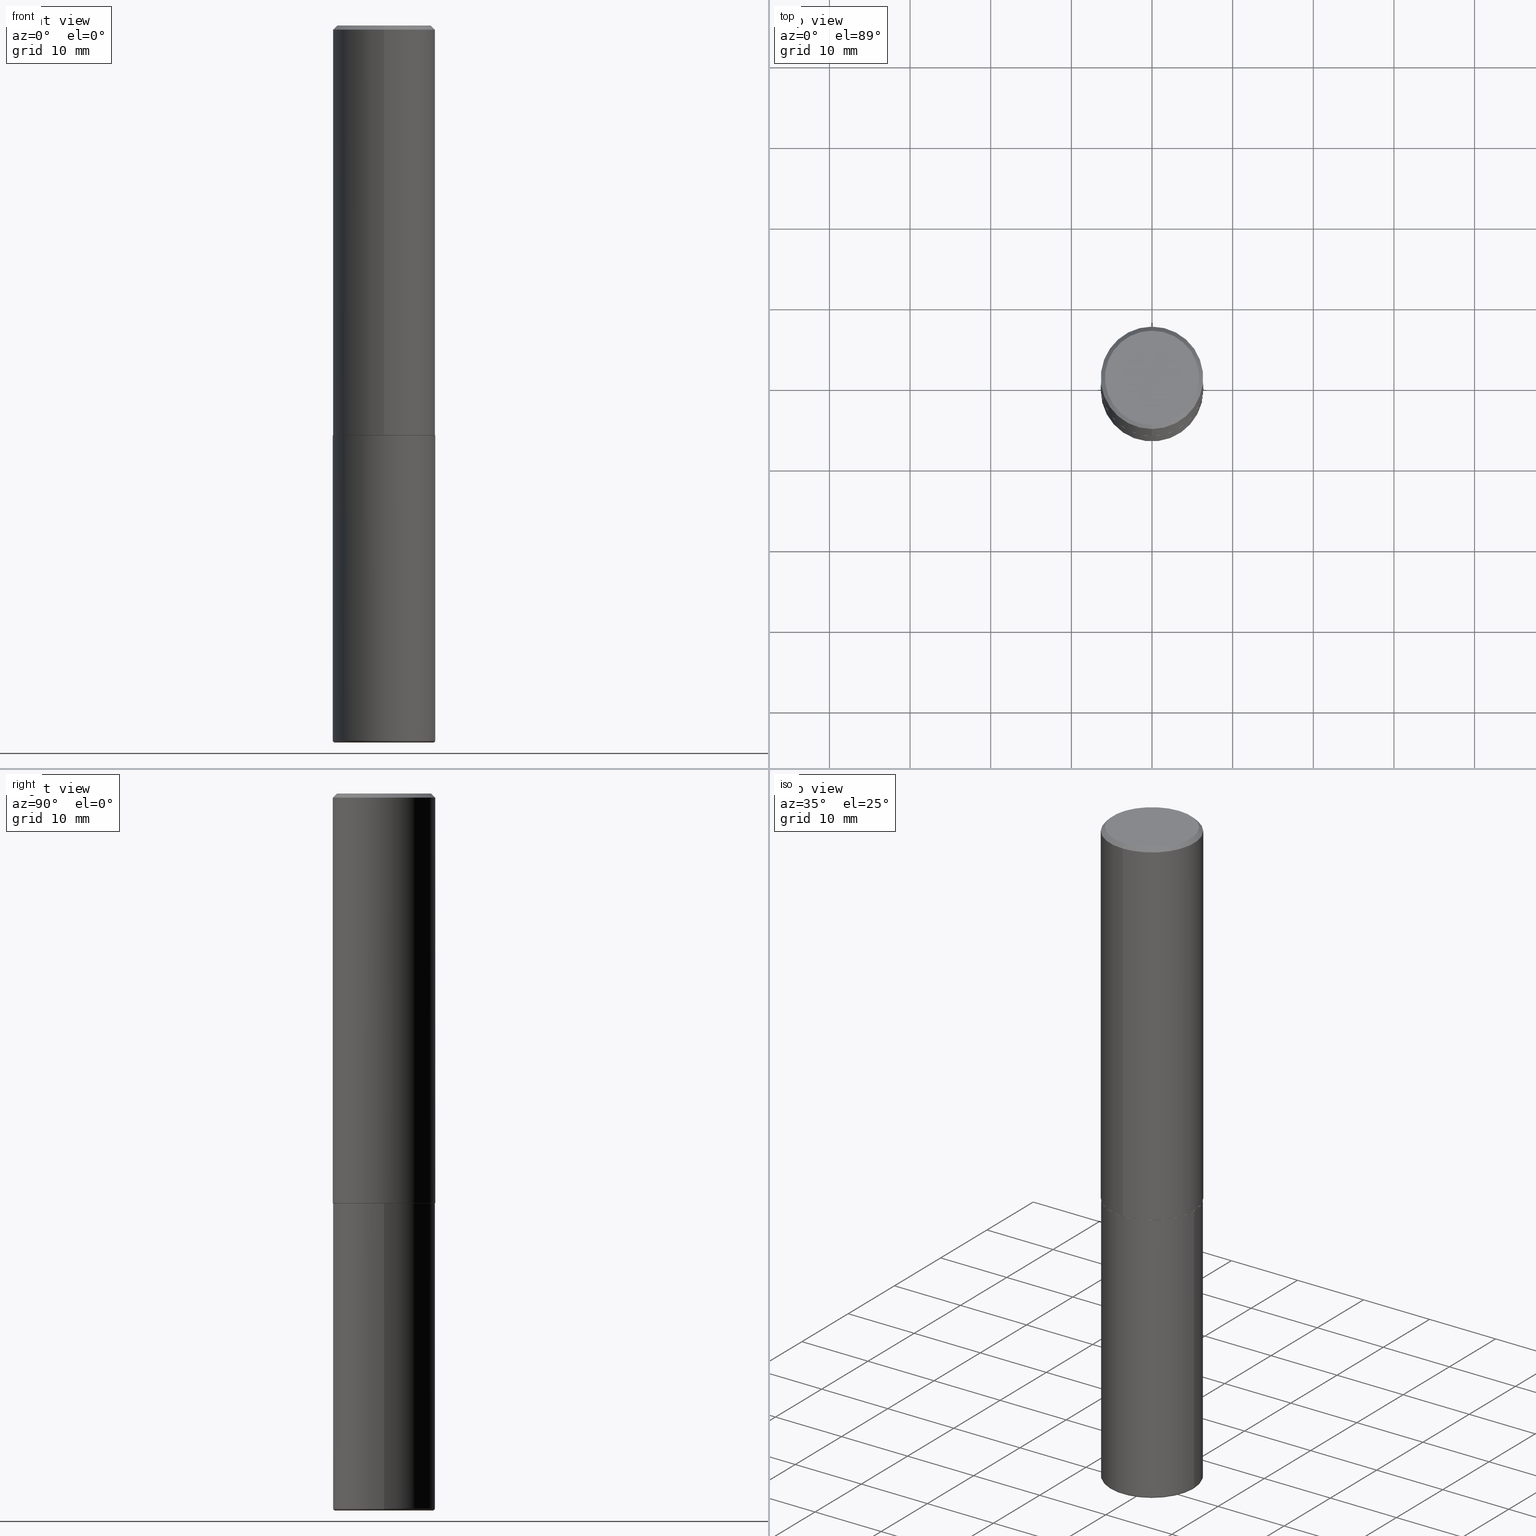
[diagram: canonical four-view strip — front | top / right | iso, engineering-drawing reading convention]
A machine part, canonical four-view strip (front | top / right | iso — engineering-drawing reading convention). The complete STEP part file that produces these views, byte-faithful:
ISO-10303-21;
HEADER;
FILE_DESCRIPTION (( 'STEP AP203' ),
    '1' );
FILE_NAME ('37516.STEP',
    '2024-03-02T03:02:19',
    ( '' ),
    ( '' ),
    'SwSTEP 2.0',
    'SolidWorks 2023',
    '' );
FILE_SCHEMA (( 'CONFIG_CONTROL_DESIGN' ));
ENDSEC;

DATA;
#1 = ORIENTED_EDGE ( 'NONE', *, *, #58, .T. ) ;
#2 = AXIS2_PLACEMENT_3D ( 'NONE', #164, #223, #317 ) ;
#3 = DIRECTION ( 'NONE',  ( -4.851104656540962697E-15, -0.7071067811865497932, -0.7071067811865451302 ) ) ;
#4 = AXIS2_PLACEMENT_3D ( 'NONE', #415, #411, #121 ) ;
#5 = EDGE_LOOP ( 'NONE', ( #131, #188, #32, #122 ) ) ;
#6 = LINE ( 'NONE', #312, #364 ) ;
#7 = DIRECTION ( 'NONE',  ( 2.445737183286911680E-29, -3.491097007558327602E-15, -1.000000000000000000 ) ) ;
#8 = DIRECTION ( 'NONE',  ( -1.000000000000000000, 6.982962677686265922E-15, -4.876176775795935793E-29 ) ) ;
#9 = VECTOR ( 'NONE', #395, 39.37007874015748143 ) ;
#10 = PERSON_AND_ORGANIZATION ( #309, #201 ) ;
#11 = DIRECTION ( 'NONE',  ( -6.982962677686265922E-15, -1.000000000000000000, 3.483106191921935554E-15 ) ) ;
#12 = DIRECTION ( 'NONE',  ( 1.000000000000000000, 0.000000000000000000, 0.000000000000000000 ) ) ;
#13 = DIRECTION ( 'NONE',  ( -6.982962677686265922E-15, -1.000000000000000000, 3.491097007558327602E-15 ) ) ;
#14 = ORIENTED_EDGE ( 'NONE', *, *, #224, .T. ) ;
#15 = CIRCLE ( 'NONE', #220, 0.2500000000000000000 ) ;
#16 = EDGE_CURVE ( 'NONE', #307, #358, #128, .T. ) ;
#17 = ORIENTED_EDGE ( 'NONE', *, *, #347, .F. ) ;
#18 = DIRECTION ( 'NONE',  ( 6.982962677686265922E-15, 1.000000000000000000, -3.483106191921935554E-15 ) ) ;
#19 = DESIGN_CONTEXT ( 'detailed design', #147, 'design' ) ;
#20 = CALENDAR_DATE ( 2024, 1, 3 ) ;
#21 = ADVANCED_FACE ( 'NONE', ( #41 ), #297, .F. ) ;
#22 = DIRECTION ( 'NONE',  ( -2.445737183286911680E-29, 3.491097007558327602E-15, 1.000000000000000000 ) ) ;
#23 = DIRECTION ( 'NONE',  ( -2.445737183286911680E-29, 3.491097007558327602E-15, 1.000000000000000000 ) ) ;
#24 = APPLICATION_PROTOCOL_DEFINITION ( 'international standard', 'config_control_design', 1994, #147 ) ;
#25 = CARTESIAN_POINT ( 'NONE',  ( 4.890937612370272633E-29, -6.982962677686290376E-15, -1.999999999999999778 ) ) ;
#26 = ADVANCED_FACE ( 'NONE', ( #143 ), #352, .T. ) ;
#27 = CLOSED_SHELL ( 'NONE', ( #402, #102, #95, #399, #310, #272 ) ) ;
#28 = SECURITY_CLASSIFICATION_LEVEL ( 'unclassified' ) ;
#29 = CC_DESIGN_APPROVAL ( #130, ( #186 ) ) ;
#30 = CARTESIAN_POINT ( 'NONE',  ( -1.738757706743831162E-15, -0.2490000000000069658, -1.999999999999998890 ) ) ;
#31 = DIRECTION ( 'NONE',  ( 4.937700262164546464E-15, 0.7071067811865447972, -0.7071067811865500152 ) ) ;
#32 = ORIENTED_EDGE ( 'NONE', *, *, #114, .T. ) ;
#33 = EDGE_CURVE ( 'NONE', #390, #249, #53, .T. ) ;
#34 = LINE ( 'NONE', #256, #313 ) ;
#35 = ORIENTED_EDGE ( 'NONE', *, *, #195, .F. ) ;
#36 = AXIS2_PLACEMENT_3D ( 'NONE', #262, #294, #11 ) ;
#37 = DIRECTION ( 'NONE',  ( 1.000000000000000000, -6.982962677686268288E-15, 0.000000000000000000 ) ) ;
#38 =( GEOMETRIC_REPRESENTATION_CONTEXT ( 3 ) GLOBAL_UNCERTAINTY_ASSIGNED_CONTEXT ( ( #362 ) ) GLOBAL_UNIT_ASSIGNED_CONTEXT ( ( #366, #261, #296 ) ) REPRESENTATION_CONTEXT ( 'NONE', 'WORKASPACE' ) );
#39 = EDGE_LOOP ( 'NONE', ( #354, #349, #134, #111 ) ) ;
#40 = LINE ( 'NONE', #392, #9 ) ;
#41 = FACE_OUTER_BOUND ( 'NONE', #413, .T. ) ;
#42 = CARTESIAN_POINT ( 'NONE',  ( -1.715124499442882299E-15, -0.2500000000000000555, -0.01999999999999918510 ) ) ;
#43 = ORIENTED_EDGE ( 'NONE', *, *, #323, .F. ) ;
#44 = DIRECTION ( 'NONE',  ( 0.000000000000000000, 0.000000000000000000, 1.000000000000000000 ) ) ;
#45 = AXIS2_PLACEMENT_3D ( 'NONE', #94, #226, #132 ) ;
#46 = VERTEX_POINT ( 'NONE', #343 ) ;
#47 = CC_DESIGN_PERSON_AND_ORGANIZATION_ASSIGNMENT ( #245, #305, ( #146 ) ) ;
#48 = ORIENTED_EDGE ( 'NONE', *, *, #417, .F. ) ;
#49 = EDGE_LOOP ( 'NONE', ( #241, #316, #289, #396 ) ) ;
#50 = CIRCLE ( 'NONE', #4, 0.2500000000000000000 ) ;
#51 = PERSON_AND_ORGANIZATION ( #309, #201 ) ;
#52 = DIRECTION ( 'NONE',  ( -6.982962677686265922E-15, -1.000000000000000000, 3.278217592397112312E-15 ) ) ;
#53 = CIRCLE ( 'NONE', #138, 0.2500000000000002776 ) ;
#54 = AXIS2_PLACEMENT_3D ( 'NONE', #192, #7, #18 ) ;
#55 = CC_DESIGN_PERSON_AND_ORGANIZATION_ASSIGNMENT ( #282, #337, ( #328 ) ) ;
#56 = CARTESIAN_POINT ( 'NONE',  ( 4.890937612370272633E-29, -6.982962677686290376E-15, -1.999999999999999778 ) ) ;
#57 = DIRECTION ( 'NONE',  ( -2.445468806185136597E-29, 3.491481338843145583E-15, 1.000000000000000000 ) ) ;
#58 = EDGE_CURVE ( 'NONE', #238, #401, #365, .T. ) ;
#59 = CALENDAR_DATE ( 2024, 1, 3 ) ;
#60 = FACE_OUTER_BOUND ( 'NONE', #106, .T. ) ;
#61 = CIRCLE ( 'NONE', #236, 0.2399999999999999911 ) ;
#62 = ADVANCED_FACE ( 'NONE', ( #60 ), #303, .F. ) ;
#63 = DIRECTION ( 'NONE',  ( -6.982962677686265133E-15, -1.000000000000000000, 3.291383124896702687E-15 ) ) ;
#64 = ORIENTED_EDGE ( 'NONE', *, *, #174, .T. ) ;
#65 = EDGE_CURVE ( 'NONE', #230, #136, #173, .T. ) ;
#66 = CARTESIAN_POINT ( 'NONE',  ( -1.745740669421519543E-15, -0.2500000000000072164, -1.998999999999998778 ) ) ;
#67 = ORIENTED_EDGE ( 'NONE', *, *, #114, .F. ) ;
#68 = CLOSED_SHELL ( 'NONE', ( #86, #142, #386, #26, #133, #200, #21, #62 ) ) ;
#69 = FACE_OUTER_BOUND ( 'NONE', #325, .T. ) ;
#70 = FACE_OUTER_BOUND ( 'NONE', #233, .T. ) ;
#71 = DIRECTION ( 'NONE',  ( -6.982962677686266711E-15, -1.000000000000000000, 3.491481338843145583E-15 ) ) ;
#72 = ORIENTED_EDGE ( 'NONE', *, *, #370, .F. ) ;
#73 = DIRECTION ( 'NONE',  ( -2.445468806185136597E-29, 3.491481338843145583E-15, 1.000000000000000000 ) ) ;
#74 = VECTOR ( 'NONE', #304, 39.37007874015748143 ) ;
#75 = EDGE_CURVE ( 'NONE', #46, #168, #321, .T. ) ;
#76 = ORIENTED_EDGE ( 'NONE', *, *, #384, .T. ) ;
#77 = CIRCLE ( 'NONE', #140, 0.2500000000000000000 ) ;
#78 = CONICAL_SURFACE ( 'NONE', #54, 0.2500000000000000000, 0.7853981633974481680 ) ;
#79 = MECHANICAL_CONTEXT ( 'NONE', #346, 'mechanical' ) ;
#80 = CARTESIAN_POINT ( 'NONE',  ( 4.891474366573836672E-31, -6.982194015116674235E-17, -0.02000000000000005593 ) ) ;
#81 = CARTESIAN_POINT ( 'NONE',  ( 0.2500000000000000555, -1.393101054198414122E-14, -3.489999999999999325 ) ) ;
#82 = APPROVAL_DATE_TIME ( #150, #110 ) ;
#83 = PLANE ( 'NONE',  #196 ) ;
#84 = AXIS2_PLACEMENT_3D ( 'NONE', #375, #22, #87 ) ;
#85 = APPROVAL_PERSON_ORGANIZATION ( #91, #110, #300 ) ;
#86 = ADVANCED_FACE ( 'NONE', ( #301 ), #383, .T. ) ;
#87 = DIRECTION ( 'NONE',  ( -6.982962677686265133E-15, -1.000000000000000000, 3.291383124896702687E-15 ) ) ;
#88 = DATE_AND_TIME ( #152, #273 ) ;
#89 = DIRECTION ( 'NONE',  ( -6.982962677686266711E-15, -1.000000000000000000, 3.491097007558327996E-15 ) ) ;
#90 = ORIENTED_EDGE ( 'NONE', *, *, #227, .T. ) ;
#91 = PERSON_AND_ORGANIZATION ( #309, #201 ) ;
#92 = FACE_OUTER_BOUND ( 'NONE', #360, .T. ) ;
#93 = ORIENTED_EDGE ( 'NONE', *, *, #65, .F. ) ;
#94 = CARTESIAN_POINT ( 'NONE',  ( 4.891474366573822799E-29, -6.982194015116654415E-15, -1.999999999999999778 ) ) ;
#95 = ADVANCED_FACE ( 'NONE', ( #92 ), #83, .F. ) ;
#96 = DIRECTION ( 'NONE',  ( -2.445468806185136597E-29, 3.491481338843145583E-15, 1.000000000000000000 ) ) ;
#97 = EDGE_LOOP ( 'NONE', ( #381, #193, #64, #197 ) ) ;
#98 = CARTESIAN_POINT ( 'NONE',  ( 1.745740669421566875E-15, 0.2499999999999999167, -0.02000000000000092676 ) ) ;
#99 = ORIENTED_EDGE ( 'NONE', *, *, #276, .F. ) ;
#100 = AXIS2_PLACEMENT_3D ( 'NONE', #202, #268, #403 ) ;
#101 = AXIS2_PLACEMENT_3D ( 'NONE', #129, #255, #189 ) ;
#102 = ADVANCED_FACE ( 'NONE', ( #155 ), #287, .T. ) ;
#103 = CARTESIAN_POINT ( 'NONE',  ( 4.889028629390535480E-29, -6.978702918109095527E-15, -1.998999999999999666 ) ) ;
#104 = CIRCLE ( 'NONE', #45, 0.2489999999999999991 ) ;
#105 = CARTESIAN_POINT ( 'NONE',  ( 8.559140821647976968E-29, -1.222018468595100934E-14, -3.500000000000000000 ) ) ;
#106 = EDGE_LOOP ( 'NONE', ( #76, #222 ) ) ;
#107 = PERSON_AND_ORGANIZATION_ROLE ( 'design_owner' ) ;
#108 = VECTOR ( 'NONE', #3, 39.37007874015748854 ) ;
#109 = CIRCLE ( 'NONE', #353, 0.2299999999999999822 ) ;
#110 = APPROVAL ( #331, 'UNSPECIFIED' ) ;
#111 = ORIENTED_EDGE ( 'NONE', *, *, #58, .F. ) ;
#112 = APPROVAL_ROLE ( '' ) ;
#113 = DIRECTION ( 'NONE',  ( -2.445737183286911680E-29, 3.491097007558327602E-15, 1.000000000000000000 ) ) ;
#114 = EDGE_CURVE ( 'NONE', #168, #358, #308, .T. ) ;
#115 = APPROVAL_DATE_TIME ( #88, #130 ) ;
#116 = DIRECTION ( 'NONE',  ( -6.982962677686265922E-15, -1.000000000000000000, 3.491097007558327207E-15 ) ) ;
#117 = APPROVAL_ROLE ( '' ) ;
#118 = CARTESIAN_POINT ( 'NONE',  ( 0.000000000000000000, 0.000000000000000000, 0.000000000000000000 ) ) ;
#119 = AXIS2_PLACEMENT_3D ( 'NONE', #382, #71, #166 ) ;
#120 = CC_DESIGN_DATE_AND_TIME_ASSIGNMENT ( #408, #123, ( #328 ) ) ;
#121 = DIRECTION ( 'NONE',  ( -6.982962677686265922E-15, -1.000000000000000000, 3.483106191921935554E-15 ) ) ;
#122 = ORIENTED_EDGE ( 'NONE', *, *, #163, .T. ) ;
#123 = DATE_TIME_ROLE ( 'classification_date' ) ;
#124 = DIRECTION ( 'NONE',  ( -4.937700262165053702E-15, -0.7071067811866175168, 0.7071067811864775177 ) ) ;
#125 = MANIFOLD_SOLID_BREP ( 'Body-Move/Copy2[2]', #68 ) ;
#126 = ORIENTED_EDGE ( 'NONE', *, *, #276, .T. ) ;
#127 = CARTESIAN_POINT ( 'NONE',  ( 8.559140821647976968E-29, -1.222018468595100934E-14, -3.500000000000000000 ) ) ;
#128 = CIRCLE ( 'NONE', #36, 0.2500000000000000000 ) ;
#129 = CARTESIAN_POINT ( 'NONE',  ( -0.2399999999999999911, -1.047996730673833573E-14, -3.489999999999999769 ) ) ;
#130 = APPROVAL ( #158, 'UNSPECIFIED' ) ;
#131 = ORIENTED_EDGE ( 'NONE', *, *, #253, .F. ) ;
#132 = DIRECTION ( 'NONE',  ( -6.982962677686265133E-15, -1.000000000000000000, 3.291383124896702687E-15 ) ) ;
#133 = ADVANCED_FACE ( 'NONE', ( #409 ), #278, .T. ) ;
#134 = ORIENTED_EDGE ( 'NONE', *, *, #154, .T. ) ;
#135 = FACE_OUTER_BOUND ( 'NONE', #97, .T. ) ;
#136 = VERTEX_POINT ( 'NONE', #81 ) ;
#137 = LOCAL_TIME ( 22, 2, 19.00000000000000000, #371 ) ;
#138 = AXIS2_PLACEMENT_3D ( 'NONE', #175, #339, #52 ) ;
#139 = CARTESIAN_POINT ( 'NONE',  ( -1.715124499442882299E-15, -0.2500000000000000555, -0.01999999999999918510 ) ) ;
#140 = AXIS2_PLACEMENT_3D ( 'NONE', #199, #324, #327 ) ;
#141 = ORIENTED_EDGE ( 'NONE', *, *, #253, .T. ) ;
#142 = ADVANCED_FACE ( 'NONE', ( #274 ), #410, .T. ) ;
#143 = FACE_OUTER_BOUND ( 'NONE', #5, .T. ) ;
#144 = DIRECTION ( 'NONE',  ( 1.000000000000000000, -6.982962677686266711E-15, 4.876176775795935793E-29 ) ) ;
#145 = AXIS2_PLACEMENT_3D ( 'NONE', #306, #23, #89 ) ;
#146 = PRODUCT_DEFINITION_FORMATION_WITH_SPECIFIED_SOURCE ( 'ANY', '', #412, .NOT_KNOWN. ) ;
#147 = APPLICATION_CONTEXT ( 'configuration controlled 3d designs of mechanical parts and assemblies' ) ;
#148 = EDGE_CURVE ( 'NONE', #378, #390, #340, .T. ) ;
#149 = EDGE_CURVE ( 'NONE', #401, #238, #15, .T. ) ;
#150 = DATE_AND_TIME ( #20, #137 ) ;
#151 = AXIS2_PLACEMENT_3D ( 'NONE', #334, #210, #208 ) ;
#152 = CALENDAR_DATE ( 2024, 1, 3 ) ;
#153 = DIRECTION ( 'NONE',  ( -1.000000000000000000, 6.982962677686265922E-15, -4.876176775795935793E-29 ) ) ;
#154 = EDGE_CURVE ( 'NONE', #136, #401, #248, .T. ) ;
#155 = FACE_OUTER_BOUND ( 'NONE', #355, .T. ) ;
#156 = PRODUCT_DEFINITION_SHAPE ( 'NONE', 'NONE',  #186 ) ;
#157 = CC_DESIGN_DATE_AND_TIME_ASSIGNMENT ( #341, #368, ( #186 ) ) ;
#158 = APPROVAL_STATUS ( 'not_yet_approved' ) ;
#159 = DIRECTION ( 'NONE',  ( -2.445468806185136597E-29, 3.491481338843145583E-15, 1.000000000000000000 ) ) ;
#160 = CC_DESIGN_SECURITY_CLASSIFICATION ( #328, ( #146 ) ) ;
#161 = CC_DESIGN_APPROVAL ( #110, ( #328 ) ) ;
#162 = APPROVAL_DATE_TIME ( #181, #219 ) ;
#163 = EDGE_CURVE ( 'NONE', #358, #307, #50, .T. ) ;
#164 = CARTESIAN_POINT ( 'NONE',  ( 4.891474366573822799E-29, -6.982194015116654415E-15, -1.999999999999999778 ) ) ;
#165 = ORIENTED_EDGE ( 'NONE', *, *, #33, .T. ) ;
#166 = DIRECTION ( 'NONE',  ( 1.000000000000000000, -6.982962677686287221E-15, 0.000000000000000000 ) ) ;
#167 = ORIENTED_EDGE ( 'NONE', *, *, #347, .T. ) ;
#168 = VERTEX_POINT ( 'NONE', #216 ) ;
#169 = PLANE ( 'NONE',  #336 ) ;
#170 = VECTOR ( 'NONE', #124, 39.37007874015748143 ) ;
#171 = LOCAL_TIME ( 22, 2, 19.00000000000000000, #379 ) ;
#172 = DIMENSIONAL_EXPONENTS ( 1.000000000000000000, 0.000000000000000000, 0.000000000000000000, 0.000000000000000000, 0.000000000000000000, 0.000000000000000000, 0.000000000000000000 ) ;
#173 = CIRCLE ( 'NONE', #254, 0.2500000000000000000 ) ;
#174 = EDGE_CURVE ( 'NONE', #322, #249, #342, .T. ) ;
#175 = CARTESIAN_POINT ( 'NONE',  ( 4.889028629390535480E-29, -6.978702918109095527E-15, -1.998999999999999666 ) ) ;
#176 = COORDINATED_UNIVERSAL_TIME_OFFSET ( 5, 0, .BEHIND. ) ;
#177 = DIRECTION ( 'NONE',  ( 6.982962677686265922E-15, 1.000000000000000000, -3.491097007558327602E-15 ) ) ;
#178 = VECTOR ( 'NONE', #242, 39.37007874015748143 ) ;
#179 = DIRECTION ( 'NONE',  ( 1.000000000000000000, -6.982962677686269077E-15, 4.883557194083113462E-29 ) ) ;
#180 = CARTESIAN_POINT ( 'NONE',  ( 1.769251412042698169E-15, 0.2489999999999930325, -2.000000000000000444 ) ) ;
#181 = DATE_AND_TIME ( #59, #221 ) ;
#182 = DIRECTION ( 'NONE',  ( 1.000000000000000000, -6.982962677686270655E-15, 0.000000000000000000 ) ) ;
#183 = APPROVAL_PERSON_ORGANIZATION ( #277, #219, #112 ) ;
#184 = AXIS2_PLACEMENT_3D ( 'NONE', #118, #113, #214 ) ;
#185 = DIRECTION ( 'NONE',  ( -2.445737183286911680E-29, 3.491097007558327602E-15, 1.000000000000000000 ) ) ;
#186 = PRODUCT_DEFINITION ( 'UNKNOWN', '', #146, #19 ) ;
#187 = FACE_OUTER_BOUND ( 'NONE', #335, .T. ) ;
#188 = ORIENTED_EDGE ( 'NONE', *, *, #384, .F. ) ;
#189 = DIRECTION ( 'NONE',  ( -1.000000000000000000, 7.105427357601074434E-15, 0.000000000000000000 ) ) ;
#190 = VECTOR ( 'NONE', #31, 39.37007874015748854 ) ;
#191 = VERTEX_POINT ( 'NONE', #250 ) ;
#192 = CARTESIAN_POINT ( 'NONE',  ( 4.891474366573836672E-31, -6.982194015116674235E-17, -0.02000000000000005593 ) ) ;
#193 = ORIENTED_EDGE ( 'NONE', *, *, #370, .T. ) ;
#194 = DIRECTION ( 'NONE',  ( -2.445468806185136597E-29, 3.491481338843145583E-15, 1.000000000000000000 ) ) ;
#195 = EDGE_CURVE ( 'NONE', #266, #191, #61, .T. ) ;
#196 = AXIS2_PLACEMENT_3D ( 'NONE', #56, #244, #153 ) ;
#197 = ORIENTED_EDGE ( 'NONE', *, *, #33, .F. ) ;
#198 = ORIENTED_EDGE ( 'NONE', *, *, #323, .T. ) ;
#199 = CARTESIAN_POINT ( 'NONE',  ( 8.534686133586125422E-29, -1.218526987256257454E-14, -3.489999999999999325 ) ) ;
#200 = ADVANCED_FACE ( 'NONE', ( #135 ), #405, .T. ) ;
#201 = ORGANIZATION ( 'UNSPECIFIED', 'UNSPECIFIED', '' ) ;
#202 = CARTESIAN_POINT ( 'NONE',  ( 0.000000000000000000, 0.000000000000000000, 0.000000000000000000 ) ) ;
#203 = APPROVAL_PERSON_ORGANIZATION ( #376, #130, #117 ) ;
#204 = ORIENTED_EDGE ( 'NONE', *, *, #243, .F. ) ;
#205 = CARTESIAN_POINT ( 'NONE',  ( 0.000000000000000000, 0.000000000000000000, 0.000000000000000000 ) ) ;
#206 = DIRECTION ( 'NONE',  ( 2.445737183286911680E-29, -3.491097007558327602E-15, -1.000000000000000000 ) ) ;
#207 = CALENDAR_DATE ( 2024, 1, 3 ) ;
#208 = DIRECTION ( 'NONE',  ( 1.000000000000000000, -6.982962677686266711E-15, 0.000000000000000000 ) ) ;
#209 = PERSON_AND_ORGANIZATION_ROLE ( 'creator' ) ;
#210 = DIRECTION ( 'NONE',  ( -2.445468806185136597E-29, 3.491481338843145583E-15, 1.000000000000000000 ) ) ;
#211 = CIRCLE ( 'NONE', #101, 0.01000000000000006439 ) ;
#212 = AXIS2_PLACEMENT_3D ( 'NONE', #290, #348, #63 ) ;
#213 = COORDINATED_UNIVERSAL_TIME_OFFSET ( 5, 0, .BEHIND. ) ;
#214 = DIRECTION ( 'NONE',  ( -6.982962677686266711E-15, -1.000000000000000000, 3.491097007558327996E-15 ) ) ;
#215 = PERSON_AND_ORGANIZATION_ROLE ( 'creator' ) ;
#216 = CARTESIAN_POINT ( 'NONE',  ( 1.675911042644703774E-15, 0.2299999999999999822, -8.286517828745257562E-16 ) ) ;
#217 = EDGE_CURVE ( 'NONE', #230, #238, #34, .T. ) ;
#218 = CARTESIAN_POINT ( 'NONE',  ( 8.534686133586125422E-29, -1.218526987256257454E-14, -3.489999999999999325 ) ) ;
#219 = APPROVAL ( #302, 'UNSPECIFIED' ) ;
#220 = AXIS2_PLACEMENT_3D ( 'NONE', #25, #159, #407 ) ;
#221 = LOCAL_TIME ( 22, 2, 19.00000000000000000, #213 ) ;
#222 = ORIENTED_EDGE ( 'NONE', *, *, #75, .T. ) ;
#223 = DIRECTION ( 'NONE',  ( -2.445737183286911680E-29, 3.491097007558327602E-15, 1.000000000000000000 ) ) ;
#224 = EDGE_CURVE ( 'NONE', #390, #358, #40, .T. ) ;
#225 = EDGE_LOOP ( 'NONE', ( #167, #326, #204, #258 ) ) ;
#226 = DIRECTION ( 'NONE',  ( -2.445737183286911680E-29, 3.491097007558327602E-15, 1.000000000000000000 ) ) ;
#227 = EDGE_CURVE ( 'NONE', #266, #136, #240, .T. ) ;
#228 = DIRECTION ( 'NONE',  ( -6.982962677686265922E-15, -1.000000000000000000, 3.491097007558327207E-15 ) ) ;
#229 = DIRECTION ( 'NONE',  ( -2.445737183286911680E-29, 3.491097007558327602E-15, 1.000000000000000000 ) ) ;
#230 = VERTEX_POINT ( 'NONE', #388 ) ;
#231 = ORIENTED_EDGE ( 'NONE', *, *, #195, .T. ) ;
#232 = DIRECTION ( 'NONE',  ( -2.445468806185136877E-29, 3.491481338843145188E-15, 1.000000000000000000 ) ) ;
#233 = EDGE_LOOP ( 'NONE', ( #35, #99 ) ) ;
#234 = EDGE_LOOP ( 'NONE', ( #285, #165, #198, #251 ) ) ;
#235 = AXIS2_PLACEMENT_3D ( 'NONE', #103, #229, #357 ) ;
#236 = AXIS2_PLACEMENT_3D ( 'NONE', #380, #96, #37 ) ;
#237 = FACE_OUTER_BOUND ( 'NONE', #49, .T. ) ;
#238 = VERTEX_POINT ( 'NONE', #284 ) ;
#239 = APPLICATION_PROTOCOL_DEFINITION ( 'international standard', 'config_control_design', 1994, #346 ) ;
#240 = CIRCLE ( 'NONE', #119, 0.01000000000000006439 ) ;
#241 = ORIENTED_EDGE ( 'NONE', *, *, #417, .T. ) ;
#242 = DIRECTION ( 'NONE',  ( -2.445468806185136877E-29, 3.491481338843145188E-15, 1.000000000000000000 ) ) ;
#243 = EDGE_CURVE ( 'NONE', #249, #390, #280, .T. ) ;
#244 = DIRECTION ( 'NONE',  ( 2.438088387897960049E-29, -3.491481338843145188E-15, -1.000000000000000000 ) ) ;
#245 = PERSON_AND_ORGANIZATION ( #309, #201 ) ;
#246 = CARTESIAN_POINT ( 'NONE',  ( 1.606081415867841067E-15, 0.2299999999999999822, -8.158020473064706174E-16 ) ) ;
#247 = MANIFOLD_SOLID_BREP ( 'Body-Move/Copy2[1]', #27 ) ;
#248 = LINE ( 'NONE', #279, #178 ) ;
#249 = VERTEX_POINT ( 'NONE', #66 ) ;
#250 = CARTESIAN_POINT ( 'NONE',  ( -0.2399999999999999911, -1.046189757664454652E-14, -3.500000000000000000 ) ) ;
#251 = ORIENTED_EDGE ( 'NONE', *, *, #163, .F. ) ;
#252 = DIRECTION ( 'NONE',  ( -2.445737183286911680E-29, 3.491097007558327602E-15, 1.000000000000000000 ) ) ;
#253 = EDGE_CURVE ( 'NONE', #46, #307, #286, .T. ) ;
#254 = AXIS2_PLACEMENT_3D ( 'NONE', #218, #57, #182 ) ;
#255 = DIRECTION ( 'NONE',  ( 7.105427357601001859E-15, 1.000000000000000000, -3.491481338843145583E-15 ) ) ;
#256 = CARTESIAN_POINT ( 'NONE',  ( -0.2500000000000000000, 1.776356839400250465E-15, -1.229733772563726445E-29 ) ) ;
#257 = CIRCLE ( 'NONE', #212, 0.2489999999999999991 ) ;
#258 = ORIENTED_EDGE ( 'NONE', *, *, #174, .F. ) ;
#259 = DIRECTION ( 'NONE',  ( 1.000000000000000000, -6.982962677686269077E-15, 4.883557194083113462E-29 ) ) ;
#260 = ORIENTED_EDGE ( 'NONE', *, *, #291, .T. ) ;
#261 =( NAMED_UNIT ( * ) PLANE_ANGLE_UNIT ( ) SI_UNIT ( $, .RADIAN. ) );
#262 = CARTESIAN_POINT ( 'NONE',  ( 4.891474366573836672E-31, -6.982194015116674235E-17, -0.02000000000000005593 ) ) ;
#263 = CYLINDRICAL_SURFACE ( 'NONE', #400, 0.2500000000000000000 ) ;
#264 = ORIENTED_EDGE ( 'NONE', *, *, #16, .F. ) ;
#265 = AXIS2_PLACEMENT_3D ( 'NONE', #275, #185, #116 ) ;
#266 = VERTEX_POINT ( 'NONE', #356 ) ;
#267 = LOCAL_TIME ( 22, 2, 19.00000000000000000, #374 ) ;
#268 = DIRECTION ( 'NONE',  ( -2.445468806185136597E-29, 3.491481338843145583E-15, 1.000000000000000000 ) ) ;
#269 = CYLINDRICAL_SURFACE ( 'NONE', #100, 0.2500000000000000000 ) ;
#270 = PERSON_AND_ORGANIZATION ( #309, #201 ) ;
#271 = AXIS2_PLACEMENT_3D ( 'NONE', #372, #283, #179 ) ;
#272 = ADVANCED_FACE ( 'NONE', ( #70 ), #169, .T. ) ;
#273 = LOCAL_TIME ( 22, 2, 19.00000000000000000, #176 ) ;
#274 = FACE_OUTER_BOUND ( 'NONE', #288, .T. ) ;
#275 = CARTESIAN_POINT ( 'NONE',  ( 6.285415214839433991E-46, -8.971934677910720830E-32, -2.569947113611056727E-17 ) ) ;
#276 = EDGE_CURVE ( 'NONE', #191, #266, #398, .T. ) ;
#277 = PERSON_AND_ORGANIZATION ( #309, #201 ) ;
#278 = CYLINDRICAL_SURFACE ( 'NONE', #145, 0.2500000000000001110 ) ;
#279 = CARTESIAN_POINT ( 'NONE',  ( 0.2500000000000000000, -1.745740669421566678E-15, 1.219044193948983948E-29 ) ) ;
#280 = CIRCLE ( 'NONE', #235, 0.2500000000000002776 ) ;
#281 = PRODUCT_RELATED_PRODUCT_CATEGORY ( 'detail', '', ( #412 ) ) ;
#282 = PERSON_AND_ORGANIZATION ( #309, #201 ) ;
#283 = DIRECTION ( 'NONE',  ( -2.445468806185136597E-29, 3.491481338843145583E-15, 1.000000000000000000 ) ) ;
#284 = CARTESIAN_POINT ( 'NONE',  ( -0.2500000000000000000, -7.807759435724181203E-15, -1.999999999999999778 ) ) ;
#285 = ORIENTED_EDGE ( 'NONE', *, *, #224, .F. ) ;
#286 = LINE ( 'NONE', #42, #108 ) ;
#287 = TOROIDAL_SURFACE ( 'NONE', #271, 0.2399999999999999911, 0.01000000000000008174 ) ;
#288 = EDGE_LOOP ( 'NONE', ( #295, #14, #264, #43 ) ) ;
#289 = ORIENTED_EDGE ( 'NONE', *, *, #149, .F. ) ;
#290 = CARTESIAN_POINT ( 'NONE',  ( 4.891474366573822799E-29, -6.982194015116654415E-15, -1.999999999999999778 ) ) ;
#291 = EDGE_CURVE ( 'NONE', #191, #230, #211, .T. ) ;
#292 = DIRECTION ( 'NONE',  ( 2.438088387897960049E-29, -3.491481338843145188E-15, -1.000000000000000000 ) ) ;
#293 = CC_DESIGN_APPROVAL ( #219, ( #146 ) ) ;
#294 = DIRECTION ( 'NONE',  ( -2.445737183286911680E-29, 3.491097007558327602E-15, 1.000000000000000000 ) ) ;
#295 = ORIENTED_EDGE ( 'NONE', *, *, #243, .T. ) ;
#296 =( NAMED_UNIT ( * ) SI_UNIT ( $, .STERADIAN. ) SOLID_ANGLE_UNIT ( ) );
#297 = PLANE ( 'NONE',  #298 ) ;
#298 = AXIS2_PLACEMENT_3D ( 'NONE', #394, #367, #13 ) ;
#299 = CARTESIAN_POINT ( 'NONE',  ( 1.776356839400276103E-15, 0.2499999999999933109, -1.999000000000000554 ) ) ;
#300 = APPROVAL_ROLE ( '' ) ;
#301 = FACE_OUTER_BOUND ( 'NONE', #225, .T. ) ;
#302 = APPROVAL_STATUS ( 'not_yet_approved' ) ;
#303 = PLANE ( 'NONE',  #344 ) ;
#304 = DIRECTION ( 'NONE',  ( 5.024295867788576727E-15, 0.7071067811866224018, 0.7071067811864726327 ) ) ;
#305 = PERSON_AND_ORGANIZATION_ROLE ( 'design_supplier' ) ;
#306 = CARTESIAN_POINT ( 'NONE',  ( 0.000000000000000000, 0.000000000000000000, 0.000000000000000000 ) ) ;
#307 = VERTEX_POINT ( 'NONE', #139 ) ;
#308 = LINE ( 'NONE', #369, #190 ) ;
#309 = PERSON ( 'UNSPECIFIED', 'UNSPECIFIED', 'UNSPECIFIED', ('UNSPECIFIED'), ('UNSPECIFIED'), ('UNSPECIFIED') ) ;
#310 = ADVANCED_FACE ( 'NONE', ( #187 ), #329, .T. ) ;
#311 = CARTESIAN_POINT ( 'NONE',  ( -1.738757706743831162E-15, -0.2490000000000069658, -1.999999999999998890 ) ) ;
#312 = CARTESIAN_POINT ( 'NONE',  ( -1.745740669421567467E-15, -0.2500000000000001110, 8.727742518895823935E-16 ) ) ;
#313 = VECTOR ( 'NONE', #232, 39.37007874015748143 ) ;
#314 = DIRECTION ( 'NONE',  ( 1.000000000000000000, -6.982962677686268288E-15, 0.000000000000000000 ) ) ;
#315 = ORIENTED_EDGE ( 'NONE', *, *, #16, .T. ) ;
#316 = ORIENTED_EDGE ( 'NONE', *, *, #217, .T. ) ;
#317 = DIRECTION ( 'NONE',  ( -6.982962677686265133E-15, -1.000000000000000000, 3.291383124896702687E-15 ) ) ;
#318 = CC_DESIGN_PERSON_AND_ORGANIZATION_ASSIGNMENT ( #51, #215, ( #186 ) ) ;
#319 = CARTESIAN_POINT ( 'NONE',  ( 8.534686133586126543E-29, -1.218526987256257612E-14, -3.489999999999999769 ) ) ;
#320 = ORIENTED_EDGE ( 'NONE', *, *, #149, .T. ) ;
#321 = CIRCLE ( 'NONE', #265, 0.2299999999999999822 ) ;
#322 = VERTEX_POINT ( 'NONE', #311 ) ;
#323 = EDGE_CURVE ( 'NONE', #249, #307, #6, .T. ) ;
#324 = DIRECTION ( 'NONE',  ( -2.445468806185136597E-29, 3.491481338843145583E-15, 1.000000000000000000 ) ) ;
#325 = EDGE_LOOP ( 'NONE', ( #387, #141, #315, #67 ) ) ;
#326 = ORIENTED_EDGE ( 'NONE', *, *, #148, .T. ) ;
#327 = DIRECTION ( 'NONE',  ( 1.000000000000000000, -6.982962677686270655E-15, 0.000000000000000000 ) ) ;
#328 = SECURITY_CLASSIFICATION ( '', '', #28 ) ;
#329 = TOROIDAL_SURFACE ( 'NONE', #338, 0.2399999999999999911, 0.01000000000000008174 ) ;
#330 = LENGTH_MEASURE_WITH_UNIT ( LENGTH_MEASURE( 0.02539999999999999897 ), #363 );
#331 = APPROVAL_STATUS ( 'not_yet_approved' ) ;
#332 = DIRECTION ( 'NONE',  ( 6.982962677686265922E-15, 1.000000000000000000, -3.483106191921935554E-15 ) ) ;
#333 = CC_DESIGN_PERSON_AND_ORGANIZATION_ASSIGNMENT ( #10, #107, ( #412 ) ) ;
#334 = CARTESIAN_POINT ( 'NONE',  ( 4.890937612370272633E-29, -6.982962677686290376E-15, -1.999999999999999778 ) ) ;
#335 = EDGE_LOOP ( 'NONE', ( #389, #126, #90, #93 ) ) ;
#336 = AXIS2_PLACEMENT_3D ( 'NONE', #127, #292, #8 ) ;
#337 = PERSON_AND_ORGANIZATION_ROLE ( 'classification_officer' ) ;
#338 = AXIS2_PLACEMENT_3D ( 'NONE', #319, #418, #259 ) ;
#339 = DIRECTION ( 'NONE',  ( -2.445737183286911680E-29, 3.491097007558327602E-15, 1.000000000000000000 ) ) ;
#340 = LINE ( 'NONE', #180, #74 ) ;
#341 = DATE_AND_TIME ( #207, #171 ) ;
#342 = LINE ( 'NONE', #30, #170 ) ;
#343 = CARTESIAN_POINT ( 'NONE',  ( -1.646519519465166968E-15, -0.2299999999999999822, 7.772528406023046093E-16 ) ) ;
#344 = AXIS2_PLACEMENT_3D ( 'NONE', #246, #377, #177 ) ;
#345 = AXIS2_PLACEMENT_3D ( 'NONE', #205, #44, #12 ) ;
#346 = APPLICATION_CONTEXT ( 'configuration controlled 3d designs of mechanical parts and assemblies' ) ;
#347 = EDGE_CURVE ( 'NONE', #322, #378, #104, .T. ) ;
#348 = DIRECTION ( 'NONE',  ( -2.445737183286911680E-29, 3.491097007558327602E-15, 1.000000000000000000 ) ) ;
#349 = ORIENTED_EDGE ( 'NONE', *, *, #65, .T. ) ;
#350 = DIRECTION ( 'NONE',  ( -2.445737183286911680E-29, 3.491097007558327602E-15, 1.000000000000000000 ) ) ;
#351 = CARTESIAN_POINT ( 'NONE',  ( 1.772804125721499659E-15, 0.2489999999999930325, -2.000000000000000444 ) ) ;
#352 = CONICAL_SURFACE ( 'NONE', #393, 0.2500000000000000000, 0.7853981633974481680 ) ;
#353 = AXIS2_PLACEMENT_3D ( 'NONE', #385, #350, #228 ) ;
#354 = ORIENTED_EDGE ( 'NONE', *, *, #217, .F. ) ;
#355 = EDGE_LOOP ( 'NONE', ( #231, #260, #48, #404 ) ) ;
#356 = CARTESIAN_POINT ( 'NONE',  ( 0.2399999999999999911, -1.389609572859571272E-14, -3.500000000000000000 ) ) ;
#357 = DIRECTION ( 'NONE',  ( -6.982962677686265922E-15, -1.000000000000000000, 3.278217592397112312E-15 ) ) ;
#358 = VERTEX_POINT ( 'NONE', #98 ) ;
#359 = CARTESIAN_POINT ( 'NONE',  ( 0.000000000000000000, 0.000000000000000000, 0.000000000000000000 ) ) ;
#360 = EDGE_LOOP ( 'NONE', ( #320, #1 ) ) ;
#361 = CARTESIAN_POINT ( 'NONE',  ( 0.2500000000000000000, -8.728703347107857054E-15, -1.999999999999999778 ) ) ;
#362 = UNCERTAINTY_MEASURE_WITH_UNIT (LENGTH_MEASURE( 1.000000000000000082E-05 ), #366, 'distance_accuracy_value', 'NONE');
#363 =( LENGTH_UNIT ( ) NAMED_UNIT ( * ) SI_UNIT ( $, .METRE. ) );
#364 = VECTOR ( 'NONE', #252, 39.37007874015748143 ) ;
#365 = CIRCLE ( 'NONE', #151, 0.2500000000000000000 ) ;
#366 =( CONVERSION_BASED_UNIT ( 'INCH', #330 ) LENGTH_UNIT ( ) NAMED_UNIT ( #172 ) );
#367 = DIRECTION ( 'NONE',  ( -2.445737183286911400E-29, 3.491097007558327602E-15, 1.000000000000000000 ) ) ;
#368 = DATE_TIME_ROLE ( 'creation_date' ) ;
#369 = CARTESIAN_POINT ( 'NONE',  ( 1.745740669421566875E-15, 0.2499999999999999167, -0.02000000000000092676 ) ) ;
#370 = EDGE_CURVE ( 'NONE', #378, #322, #257, .T. ) ;
#371 = COORDINATED_UNIVERSAL_TIME_OFFSET ( 5, 0, .BEHIND. ) ;
#372 = CARTESIAN_POINT ( 'NONE',  ( 8.534686133586126543E-29, -1.218526987256257612E-14, -3.489999999999999769 ) ) ;
#373 = AXIS2_PLACEMENT_3D ( 'NONE', #105, #194, #314 ) ;
#374 = COORDINATED_UNIVERSAL_TIME_OFFSET ( 5, 0, .BEHIND. ) ;
#375 = CARTESIAN_POINT ( 'NONE',  ( 4.891474366573822799E-29, -6.982194015116654415E-15, -1.999999999999999778 ) ) ;
#376 = PERSON_AND_ORGANIZATION ( #309, #201 ) ;
#377 = DIRECTION ( 'NONE',  ( 2.445737183286911400E-29, -3.491097007558327602E-15, -1.000000000000000000 ) ) ;
#378 = VERTEX_POINT ( 'NONE', #351 ) ;
#379 = COORDINATED_UNIVERSAL_TIME_OFFSET ( 5, 0, .BEHIND. ) ;
#380 = CARTESIAN_POINT ( 'NONE',  ( 8.559140821647976968E-29, -1.222018468595100934E-14, -3.500000000000000000 ) ) ;
#381 = ORIENTED_EDGE ( 'NONE', *, *, #148, .F. ) ;
#382 = CARTESIAN_POINT ( 'NONE',  ( 0.2399999999999999911, -1.386118091520728107E-14, -3.489999999999999769 ) ) ;
#383 = CONICAL_SURFACE ( 'NONE', #84, 0.2489999999999999991, 0.7853981633975507526 ) ;
#384 = EDGE_CURVE ( 'NONE', #168, #46, #109, .T. ) ;
#385 = CARTESIAN_POINT ( 'NONE',  ( 6.285415214839433991E-46, -8.971934677910720830E-32, -2.569947113611056727E-17 ) ) ;
#386 = ADVANCED_FACE ( 'NONE', ( #69 ), #78, .T. ) ;
#387 = ORIENTED_EDGE ( 'NONE', *, *, #75, .F. ) ;
#388 = CARTESIAN_POINT ( 'NONE',  ( -0.2500000000000000555, -1.040891303316232250E-14, -3.489999999999999325 ) ) ;
#389 = ORIENTED_EDGE ( 'NONE', *, *, #291, .F. ) ;
#390 = VERTEX_POINT ( 'NONE', #299 ) ;
#391 = CC_DESIGN_PERSON_AND_ORGANIZATION_ASSIGNMENT ( #270, #209, ( #146 ) ) ;
#392 = CARTESIAN_POINT ( 'NONE',  ( 1.776356839400251254E-15, 0.2500000000000001110, -8.727742518895823935E-16 ) ) ;
#393 = AXIS2_PLACEMENT_3D ( 'NONE', #80, #206, #332 ) ;
#394 = CARTESIAN_POINT ( 'NONE',  ( 4.891474366573822799E-29, -6.982194015116654415E-15, -1.999999999999999778 ) ) ;
#395 = DIRECTION ( 'NONE',  ( -2.445737183286911680E-29, 3.491097007558327602E-15, 1.000000000000000000 ) ) ;
#396 = ORIENTED_EDGE ( 'NONE', *, *, #154, .F. ) ;
#397 = FACE_OUTER_BOUND ( 'NONE', #39, .T. ) ;
#398 = CIRCLE ( 'NONE', #373, 0.2399999999999999911 ) ;
#399 = ADVANCED_FACE ( 'NONE', ( #397 ), #269, .T. ) ;
#400 = AXIS2_PLACEMENT_3D ( 'NONE', #359, #73, #144 ) ;
#401 = VERTEX_POINT ( 'NONE', #361 ) ;
#402 = ADVANCED_FACE ( 'NONE', ( #237 ), #263, .T. ) ;
#403 = DIRECTION ( 'NONE',  ( 1.000000000000000000, -6.982962677686266711E-15, 4.876176775795935793E-29 ) ) ;
#404 = ORIENTED_EDGE ( 'NONE', *, *, #227, .F. ) ;
#405 = CONICAL_SURFACE ( 'NONE', #2, 0.2489999999999999991, 0.7853981633975507526 ) ;
#406 = SHAPE_DEFINITION_REPRESENTATION ( #156, #416 ) ;
#407 = DIRECTION ( 'NONE',  ( 1.000000000000000000, -6.982962677686266711E-15, 0.000000000000000000 ) ) ;
#408 = DATE_AND_TIME ( #414, #267 ) ;
#409 = FACE_OUTER_BOUND ( 'NONE', #234, .T. ) ;
#410 = CYLINDRICAL_SURFACE ( 'NONE', #184, 0.2500000000000001110 ) ;
#411 = DIRECTION ( 'NONE',  ( -2.445737183286911680E-29, 3.491097007558327602E-15, 1.000000000000000000 ) ) ;
#412 = PRODUCT ( '37516', '37516', '', ( #79 ) ) ;
#413 = EDGE_LOOP ( 'NONE', ( #17, #72 ) ) ;
#414 = CALENDAR_DATE ( 2024, 1, 3 ) ;
#415 = CARTESIAN_POINT ( 'NONE',  ( 4.891474366573836672E-31, -6.982194015116674235E-17, -0.02000000000000005593 ) ) ;
#416 = ADVANCED_BREP_SHAPE_REPRESENTATION ( '37516', ( #247, #125, #345 ), #38 ) ;
#417 = EDGE_CURVE ( 'NONE', #136, #230, #77, .T. ) ;
#418 = DIRECTION ( 'NONE',  ( -2.445468806185136597E-29, 3.491481338843145583E-15, 1.000000000000000000 ) ) ;
ENDSEC;
END-ISO-10303-21;
